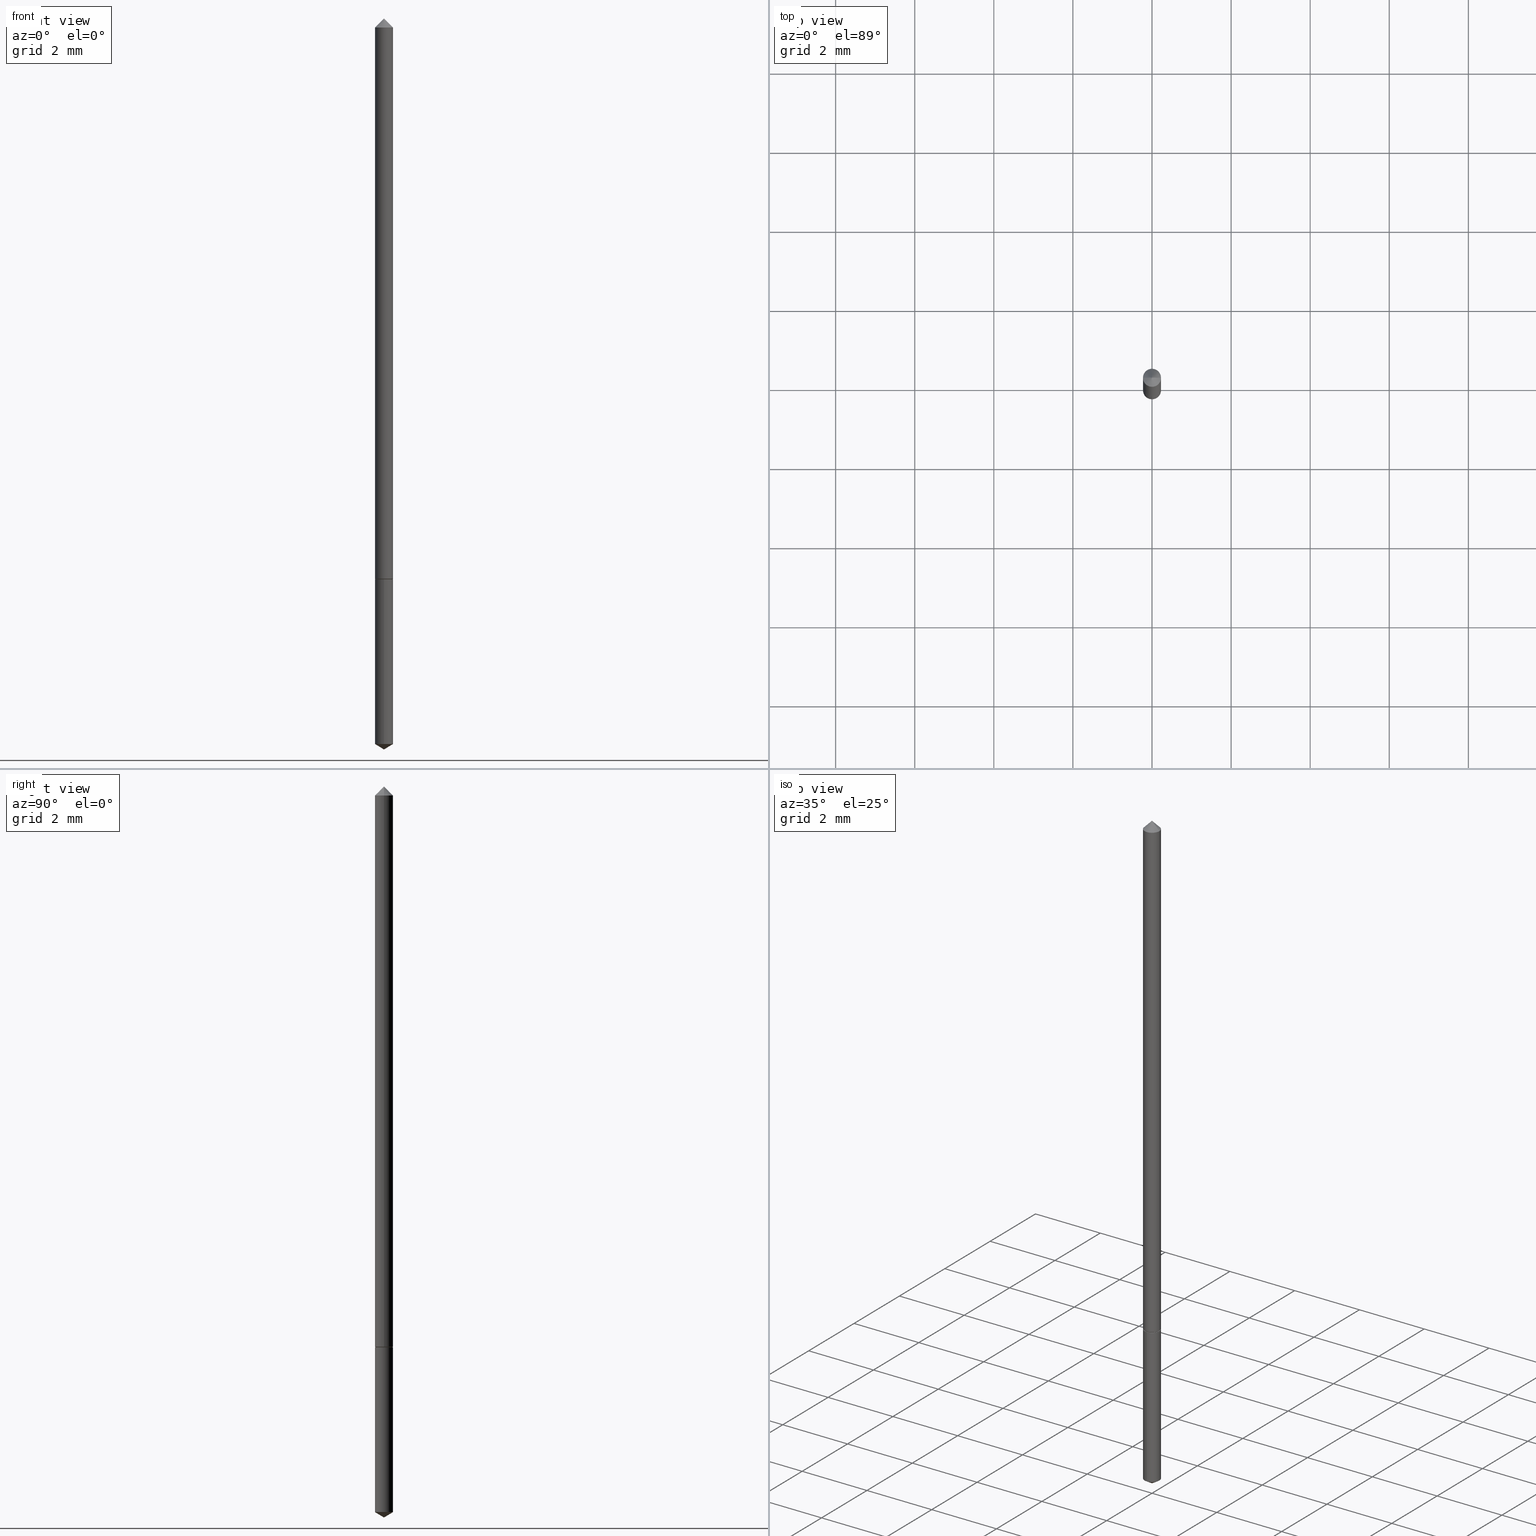
[diagram: canonical four-view strip — front | top / right | iso, engineering-drawing reading convention]
A machine part, canonical four-view strip (front | top / right | iso — engineering-drawing reading convention). The complete STEP part file that produces these views, byte-faithful:
ISO-10303-21;
HEADER;
FILE_DESCRIPTION (( 'STEP AP203' ),
    '1' );
FILE_NAME ('51077.STEP',
    '2024-04-22T18:24:59',
    ( '' ),
    ( '' ),
    'SwSTEP 2.0',
    'SolidWorks 2023',
    '' );
FILE_SCHEMA (( 'CONFIG_CONTROL_DESIGN' ));
ENDSEC;

DATA;
#1 = CALENDAR_DATE ( 2024, 22, 4 ) ;
#2 = DIRECTION ( 'NONE',  ( 6.982962677686265922E-15, 1.000000000000000000, -3.491326065639529727E-15 ) ) ;
#3 = LINE ( 'NONE', #194, #46 ) ;
#4 = EDGE_LOOP ( 'NONE', ( #338, #176, #84, #188 ) ) ;
#5 = AXIS2_PLACEMENT_3D ( 'NONE', #81, #225, #340 ) ;
#6 = DIRECTION ( 'NONE',  ( -6.982962677686265133E-15, -1.000000000000000000, 0.000000000000000000 ) ) ;
#7 = VERTEX_POINT ( 'NONE', #308 ) ;
#8 = LINE ( 'NONE', #278, #47 ) ;
#9 = ADVANCED_FACE ( 'NONE', ( #30 ), #231, .T. ) ;
#10 = DIRECTION ( 'NONE',  ( -2.445468806185136877E-29, 3.491481338843145188E-15, 1.000000000000000000 ) ) ;
#11 = AXIS2_PLACEMENT_3D ( 'NONE', #362, #73, #28 ) ;
#12 = DIRECTION ( 'NONE',  ( -2.445468806185136597E-29, 3.491481338843145583E-15, 1.000000000000000000 ) ) ;
#13 = CARTESIAN_POINT ( 'NONE',  ( -0.009000000000000002789, -1.003135137965526004E-15, -0.03125000000000020123 ) ) ;
#14 = DIRECTION ( 'NONE',  ( -6.982962677686268288E-15, -1.000000000000000000, 3.468864327941607625E-15 ) ) ;
#15 = CARTESIAN_POINT ( 'NONE',  ( 5.441168093761962005E-31, -7.768545978926047101E-17, -0.02225000000000013425 ) ) ;
#16 = EDGE_CURVE ( 'NONE', #287, #248, #280, .T. ) ;
#17 = EDGE_LOOP ( 'NONE', ( #359, #281, #80, #115 ) ) ;
#18 = FACE_OUTER_BOUND ( 'NONE', #306, .T. ) ;
#19 = DIRECTION ( 'NONE',  ( -6.982962677686265133E-15, -1.000000000000000000, 0.000000000000000000 ) ) ;
#20 = CYLINDRICAL_SURFACE ( 'NONE', #276, 0.009000000000000037484 ) ;
#21 = APPROVAL_DATE_TIME ( #159, #251 ) ;
#22 = PERSON_AND_ORGANIZATION_ROLE ( 'creator' ) ;
#23 = ORIENTED_EDGE ( 'NONE', *, *, #208, .F. ) ;
#24 = DATE_TIME_ROLE ( 'classification_date' ) ;
#25 = ADVANCED_FACE ( 'NONE', ( #227 ), #201, .T. ) ;
#26 = DATE_AND_TIME ( #78, #310 ) ;
#27 = CONICAL_SURFACE ( 'NONE', #198, 0.009000000000000002789, 0.7853981633974447263 ) ;
#28 = DIRECTION ( 'NONE',  ( 1.000000000000000000, 0.000000000000000000, 0.000000000000000000 ) ) ;
#29 = CC_DESIGN_SECURITY_CLASSIFICATION ( #125, ( #152 ) ) ;
#30 = FACE_OUTER_BOUND ( 'NONE', #66, .T. ) ;
#31 = ADVANCED_FACE ( 'NONE', ( #107 ), #63, .T. ) ;
#32 = ORIENTED_EDGE ( 'NONE', *, *, #349, .T. ) ;
#33 = DATE_AND_TIME ( #339, #163 ) ;
#34 = CARTESIAN_POINT ( 'NONE',  ( 0.000000000000000000, 0.000000000000000000, 0.000000000000000000 ) ) ;
#35 = VERTEX_POINT ( 'NONE', #258 ) ;
#36 = PLANE ( 'NONE',  #52 ) ;
#37 = EDGE_CURVE ( 'NONE', #197, #195, #60, .T. ) ;
#38 = ORIENTED_EDGE ( 'NONE', *, *, #345, .F. ) ;
#39 = DIRECTION ( 'NONE',  ( 2.445468806185136597E-29, -3.491481338843145583E-15, -1.000000000000000000 ) ) ;
#40 = VECTOR ( 'NONE', #10, 39.37007874015748143 ) ;
#41 = DIRECTION ( 'NONE',  ( -6.982962677686265133E-15, -1.000000000000000000, 0.000000000000000000 ) ) ;
#42 = DIRECTION ( 'NONE',  ( -6.982962677686265133E-15, -1.000000000000000000, 0.000000000000000000 ) ) ;
#43 = LINE ( 'NONE', #151, #40 ) ;
#44 = ORIENTED_EDGE ( 'NONE', *, *, #70, .T. ) ;
#45 = DIRECTION ( 'NONE',  ( 1.000000000000000000, -6.982962677686267499E-15, 4.876176775795935793E-29 ) ) ;
#46 = VECTOR ( 'NONE', #300, 39.37007874015748143 ) ;
#47 = VECTOR ( 'NONE', #134, 39.37007874015748143 ) ;
#48 = LINE ( 'NONE', #355, #260 ) ;
#49 = ADVANCED_FACE ( 'NONE', ( #284 ), #36, .F. ) ;
#50 = VERTEX_POINT ( 'NONE', #337 ) ;
#51 =( NAMED_UNIT ( * ) SI_UNIT ( $, .STERADIAN. ) SOLID_ANGLE_UNIT ( ) );
#52 = AXIS2_PLACEMENT_3D ( 'NONE', #254, #79, #330 ) ;
#53 = ORIENTED_EDGE ( 'NONE', *, *, #189, .F. ) ;
#54 = CALENDAR_DATE ( 2024, 22, 4 ) ;
#55 = EDGE_CURVE ( 'NONE', #358, #35, #8, .T. ) ;
#56 = SECURITY_CLASSIFICATION_LEVEL ( 'unclassified' ) ;
#57 = CC_DESIGN_DATE_AND_TIME_ASSIGNMENT ( #273, #24, ( #125 ) ) ;
#58 = AXIS2_PLACEMENT_3D ( 'NONE', #137, #234, #141 ) ;
#59 = DIRECTION ( 'NONE',  ( 0.7071067811865450192, -7.319954787623246579E-15, -0.7071067811865500152 ) ) ;
#60 = LINE ( 'NONE', #83, #312 ) ;
#61 = ORIENTED_EDGE ( 'NONE', *, *, #226, .T. ) ;
#62 = CARTESIAN_POINT ( 'NONE',  ( 1.820894923513988094E-29, -2.599704482255101683E-15, -0.7445922544287519873 ) ) ;
#63 = CONICAL_SURFACE ( 'NONE', #58, 0.009000000000000072178, 0.7853981633974931320 ) ;
#64 = ADVANCED_FACE ( 'NONE', ( #164 ), #342, .T. ) ;
#65 = CIRCLE ( 'NONE', #113, 0.008500000000000059591 ) ;
#66 = EDGE_LOOP ( 'NONE', ( #53, #154, #32, #38 ) ) ;
#67 = DIRECTION ( 'NONE',  ( -6.982962677686265133E-15, -1.000000000000000000, 0.000000000000000000 ) ) ;
#68 = ORIENTED_EDGE ( 'NONE', *, *, #329, .F. ) ;
#69 = CARTESIAN_POINT ( 'NONE',  ( 7.642090019328600035E-31, -1.091087918388489897E-16, -0.03125000000000020123 ) ) ;
#70 = EDGE_CURVE ( 'NONE', #197, #172, #256, .T. ) ;
#71 = ORIENTED_EDGE ( 'NONE', *, *, #299, .T. ) ;
#72 = PERSON_AND_ORGANIZATION ( #127, #343 ) ;
#73 = DIRECTION ( 'NONE',  ( 0.000000000000000000, 0.000000000000000000, 1.000000000000000000 ) ) ;
#74 = VECTOR ( 'NONE', #352, 39.37007874015748143 ) ;
#75 = ORIENTED_EDGE ( 'NONE', *, *, #361, .F. ) ;
#76 = CALENDAR_DATE ( 2024, 22, 4 ) ;
#77 = CARTESIAN_POINT ( 'NONE',  ( -0.009000000000000002789, -4.626212773967256861E-17, -0.03125000000000020123 ) ) ;
#78 = CALENDAR_DATE ( 2024, 22, 4 ) ;
#79 = DIRECTION ( 'NONE',  ( -2.438088387897960049E-29, 3.491481338843145188E-15, 1.000000000000000000 ) ) ;
#80 = ORIENTED_EDGE ( 'NONE', *, *, #257, .F. ) ;
#81 = CARTESIAN_POINT ( 'NONE',  ( -9.444844824080368239E-28, 1.348351974264681605E-13, 38.62007874015748143 ) ) ;
#82 = EDGE_CURVE ( 'NONE', #287, #50, #3, .T. ) ;
#83 = CARTESIAN_POINT ( 'NONE',  ( 0.009000000000000002789, -1.708532738187927954E-16, -0.03125000000000020123 ) ) ;
#84 = ORIENTED_EDGE ( 'NONE', *, *, #329, .T. ) ;
#85 = ORIENTED_EDGE ( 'NONE', *, *, #173, .F. ) ;
#86 = ADVANCED_FACE ( 'NONE', ( #109 ), #162, .F. ) ;
#87 = CYLINDRICAL_SURFACE ( 'NONE', #187, 0.008999999999999999320 ) ;
#88 = MANIFOLD_SOLID_BREP ( 'Body-Move/Copy2[2]', #124 ) ;
#89 = LINE ( 'NONE', #346, #74 ) ;
#90 = VERTEX_POINT ( 'NONE', #228 ) ;
#91 = DIRECTION ( 'NONE',  ( 1.000000000000000000, -6.982962677686268288E-15, 0.000000000000000000 ) ) ;
#92 = CARTESIAN_POINT ( 'NONE',  ( 1.418371907587379260E-29, -2.025059176529024998E-15, -0.5800000000000000711 ) ) ;
#93 = CC_DESIGN_PERSON_AND_ORGANIZATION_ASSIGNMENT ( #104, #22, ( #143 ) ) ;
#94 = EDGE_LOOP ( 'NONE', ( #61, #262, #165, #85 ) ) ;
#95 = LINE ( 'NONE', #214, #202 ) ;
#96 = EDGE_LOOP ( 'NONE', ( #205, #110, #75, #68 ) ) ;
#97 = CARTESIAN_POINT ( 'NONE',  ( 1.419594641990472061E-29, -2.026804917198446107E-15, -0.5805000000000000160 ) ) ;
#98 = COORDINATED_UNIVERSAL_TIME_OFFSET ( 5, 0, .BEHIND. ) ;
#99 = CYLINDRICAL_SURFACE ( 'NONE', #363, 0.008999999999999999320 ) ;
#100 = PERSON_AND_ORGANIZATION_ROLE ( 'creator' ) ;
#101 = ORIENTED_EDGE ( 'NONE', *, *, #82, .F. ) ;
#102 = VECTOR ( 'NONE', #190, 39.37007874015748143 ) ;
#103 = DIRECTION ( 'NONE',  ( -2.445577232883705926E-29, 3.491326065639529727E-15, 1.000000000000000000 ) ) ;
#104 = PERSON_AND_ORGANIZATION ( #127, #343 ) ;
#105 = EDGE_CURVE ( 'NONE', #248, #90, #335, .T. ) ;
#106 = ORIENTED_EDGE ( 'NONE', *, *, #257, .T. ) ;
#107 = FACE_OUTER_BOUND ( 'NONE', #96, .T. ) ;
#108 = APPROVAL_STATUS ( 'not_yet_approved' ) ;
#109 = FACE_OUTER_BOUND ( 'NONE', #135, .T. ) ;
#110 = ORIENTED_EDGE ( 'NONE', *, *, #55, .T. ) ;
#111 = CONICAL_SURFACE ( 'NONE', #313, 65.52281426576817580, 1.029744258676652757 ) ;
#112 = CC_DESIGN_PERSON_AND_ORGANIZATION_ASSIGNMENT ( #184, #219, ( #152 ) ) ;
#113 = AXIS2_PLACEMENT_3D ( 'NONE', #212, #263, #150 ) ;
#114 = DIRECTION ( 'NONE',  ( -2.445468806185136597E-29, 3.491481338843145583E-15, 1.000000000000000000 ) ) ;
#115 = ORIENTED_EDGE ( 'NONE', *, *, #349, .F. ) ;
#116 = DIRECTION ( 'NONE',  ( -2.445577232883705926E-29, 3.491326065639529727E-15, 1.000000000000000000 ) ) ;
#117 = CARTESIAN_POINT ( 'NONE',  ( 1.419594641990472061E-29, -2.026804917198446107E-15, -0.5805000000000000160 ) ) ;
#118 = EDGE_CURVE ( 'NONE', #248, #50, #209, .T. ) ;
#119 = ORIENTED_EDGE ( 'NONE', *, *, #118, .F. ) ;
#120 = CARTESIAN_POINT ( 'NONE',  ( -9.444844824080368239E-28, 1.348351974264681605E-13, 38.62007874015748143 ) ) ;
#121 = PRODUCT_DEFINITION_SHAPE ( 'NONE', 'NONE',  #143 ) ;
#122 = CARTESIAN_POINT ( 'NONE',  ( 0.000000000000000000, 0.000000000000000000, 0.000000000000000000 ) ) ;
#123 = EDGE_LOOP ( 'NONE', ( #232, #279 ) ) ;
#124 = CLOSED_SHELL ( 'NONE', ( #132, #315, #31, #49, #166, #9, #25 ) ) ;
#125 = SECURITY_CLASSIFICATION ( '', '', #56 ) ;
#126 = APPROVAL_DATE_TIME ( #328, #180 ) ;
#127 = PERSON ( 'UNSPECIFIED', 'UNSPECIFIED', 'UNSPECIFIED', ('UNSPECIFIED'), ('UNSPECIFIED'), ('UNSPECIFIED') ) ;
#128 = ORIENTED_EDGE ( 'NONE', *, *, #37, .T. ) ;
#129 = PERSON_AND_ORGANIZATION ( #127, #343 ) ;
#130 = DATE_TIME_ROLE ( 'creation_date' ) ;
#131 = CC_DESIGN_APPROVAL ( #180, ( #152 ) ) ;
#132 = ADVANCED_FACE ( 'NONE', ( #18 ), #27, .T. ) ;
#133 =( LENGTH_UNIT ( ) NAMED_UNIT ( * ) SI_UNIT ( $, .METRE. ) );
#134 = DIRECTION ( 'NONE',  ( -0.7071067811865792141, 7.493145998870469334E-15, 0.7071067811865158204 ) ) ;
#135 = EDGE_LOOP ( 'NONE', ( #71, #215 ) ) ;
#136 = CC_DESIGN_PERSON_AND_ORGANIZATION_ASSIGNMENT ( #324, #249, ( #125 ) ) ;
#137 = CARTESIAN_POINT ( 'NONE',  ( 1.418371907587379260E-29, -2.025059176529024998E-15, -0.5800000000000000711 ) ) ;
#138 = CIRCLE ( 'NONE', #246, 0.008999999999999999320 ) ;
#139 = AXIS2_PLACEMENT_3D ( 'NONE', #97, #240, #67 ) ;
#140 = DIRECTION ( 'NONE',  ( -2.445577232883705926E-29, 3.491326065639529727E-15, 1.000000000000000000 ) ) ;
#141 = DIRECTION ( 'NONE',  ( 1.000000000000000000, -6.982962677686277755E-15, 0.000000000000000000 ) ) ;
#142 = APPROVAL_ROLE ( '' ) ;
#143 = PRODUCT_DEFINITION ( 'UNKNOWN', '', #152, #200 ) ;
#144 = AXIS2_PLACEMENT_3D ( 'NONE', #92, #347, #147 ) ;
#145 = DIRECTION ( 'NONE',  ( -2.445468806185136597E-29, 3.491481338843145583E-15, 1.000000000000000000 ) ) ;
#146 = CC_DESIGN_APPROVAL ( #251, ( #143 ) ) ;
#147 = DIRECTION ( 'NONE',  ( 1.000000000000000000, -6.982962677686277755E-15, 0.000000000000000000 ) ) ;
#148 = CARTESIAN_POINT ( 'NONE',  ( 1.834182924662779585E-29, -2.618494549229647394E-15, -0.7500000000000001110 ) ) ;
#149 = ORIENTED_EDGE ( 'NONE', *, *, #173, .T. ) ;
#150 = DIRECTION ( 'NONE',  ( 1.000000000000000000, -6.982962677686255667E-15, 0.000000000000000000 ) ) ;
#151 = CARTESIAN_POINT ( 'NONE',  ( -0.009000000000000037484, 6.394884621840928307E-17, -4.427041581229433862E-31 ) ) ;
#152 = PRODUCT_DEFINITION_FORMATION_WITH_SPECIFIED_SOURCE ( 'ANY', '', #245, .NOT_KNOWN. ) ;
#153 = CARTESIAN_POINT ( 'NONE',  ( 1.419594641990472061E-29, -2.026804917198446107E-15, -0.5805000000000000160 ) ) ;
#154 = ORIENTED_EDGE ( 'NONE', *, *, #161, .T. ) ;
#155 = PERSON_AND_ORGANIZATION ( #127, #343 ) ;
#156 = COORDINATED_UNIVERSAL_TIME_OFFSET ( 5, 0, .BEHIND. ) ;
#157 = CARTESIAN_POINT ( 'NONE',  ( 1.820894923513988094E-29, -2.599704482255101683E-15, -0.7445922544287519873 ) ) ;
#158 = ORIENTED_EDGE ( 'NONE', *, *, #345, .T. ) ;
#159 = DATE_AND_TIME ( #1, #264 ) ;
#160 = APPLICATION_PROTOCOL_DEFINITION ( 'international standard', 'config_control_design', 1994, #332 ) ;
#161 = EDGE_CURVE ( 'NONE', #35, #168, #286, .T. ) ;
#162 = PLANE ( 'NONE',  #259 ) ;
#163 = LOCAL_TIME ( 14, 24, 59.00000000000000000, #233 ) ;
#164 = FACE_OUTER_BOUND ( 'NONE', #282, .T. ) ;
#165 = ORIENTED_EDGE ( 'NONE', *, *, #299, .F. ) ;
#166 = ADVANCED_FACE ( 'NONE', ( #314 ), #192, .T. ) ;
#167 = DIRECTION ( 'NONE',  ( -2.445468806185136597E-29, 3.491481338843145583E-15, 1.000000000000000000 ) ) ;
#168 = VERTEX_POINT ( 'NONE', #204 ) ;
#169 = ORIENTED_EDGE ( 'NONE', *, *, #70, .F. ) ;
#170 = AXIS2_PLACEMENT_3D ( 'NONE', #157, #103, #41 ) ;
#171 = DIRECTION ( 'NONE',  ( -1.000000000000000000, 6.982962677686266711E-15, 0.000000000000000000 ) ) ;
#172 = VERTEX_POINT ( 'NONE', #13 ) ;
#173 = EDGE_CURVE ( 'NONE', #50, #325, #89, .T. ) ;
#174 = DIRECTION ( 'NONE',  ( 1.000000000000000000, -6.982962677686277755E-15, 0.000000000000000000 ) ) ;
#175 = CARTESIAN_POINT ( 'NONE',  ( -6.284666409916219695E-17, -0.009000000000002025477, -0.5805000000000000160 ) ) ;
#176 = ORIENTED_EDGE ( 'NONE', *, *, #220, .T. ) ;
#177 = CARTESIAN_POINT ( 'NONE',  ( 1.419594641990472061E-29, -2.026804917198446107E-15, -0.5805000000000000160 ) ) ;
#178 = CARTESIAN_POINT ( 'NONE',  ( 7.642090019328600035E-31, -1.091087918388489897E-16, -0.03125000000000020123 ) ) ;
#179 = AXIS2_PLACEMENT_3D ( 'NONE', #62, #140, #6 ) ;
#180 = APPROVAL ( #322, 'UNSPECIFIED' ) ;
#181 = APPLICATION_CONTEXT ( 'configuration controlled 3d designs of mechanical parts and assemblies' ) ;
#182 = ORIENTED_EDGE ( 'NONE', *, *, #226, .F. ) ;
#183 = EDGE_LOOP ( 'NONE', ( #101, #344, #182 ) ) ;
#184 = PERSON_AND_ORGANIZATION ( #127, #343 ) ;
#185 = APPROVAL_STATUS ( 'not_yet_approved' ) ;
#186 = CIRCLE ( 'NONE', #239, 0.008500000000000059591 ) ;
#187 = AXIS2_PLACEMENT_3D ( 'NONE', #354, #318, #42 ) ;
#188 = ORIENTED_EDGE ( 'NONE', *, *, #161, .F. ) ;
#189 = EDGE_CURVE ( 'NONE', #35, #172, #43, .T. ) ;
#190 = DIRECTION ( 'NONE',  ( -0.7071067811865450192, 2.468850131082230634E-15, -0.7071067811865500152 ) ) ;
#191 = DIRECTION ( 'NONE',  ( 2.445468806185136597E-29, -3.491481338843145583E-15, -1.000000000000000000 ) ) ;
#192 = CONICAL_SURFACE ( 'NONE', #296, 0.009000000000000072178, 0.7853981633974931320 ) ;
#193 = CARTESIAN_POINT ( 'NONE',  ( 6.394884621842319907E-17, 0.008999999999997973163, -0.5805000000000000160 ) ) ;
#194 = CARTESIAN_POINT ( 'NONE',  ( 1.834057041265740515E-29, -2.618674821419045132E-15, -0.7500000000000001110 ) ) ;
#195 = VERTEX_POINT ( 'NONE', #237 ) ;
#196 = CARTESIAN_POINT ( 'NONE',  ( 1.834184028511578116E-29, -2.618494549229647394E-15, -0.7500000000000001110 ) ) ;
#197 = VERTEX_POINT ( 'NONE', #15 ) ;
#198 = AXIS2_PLACEMENT_3D ( 'NONE', #206, #39, #348 ) ;
#199 = DIMENSIONAL_EXPONENTS ( 1.000000000000000000, 0.000000000000000000, 0.000000000000000000, 0.000000000000000000, 0.000000000000000000, 0.000000000000000000, 0.000000000000000000 ) ;
#200 = DESIGN_CONTEXT ( 'detailed design', #181, 'design' ) ;
#201 = CONICAL_SURFACE ( 'NONE', #271, 0.009000000000000002789, 0.7853981633974447263 ) ;
#202 = VECTOR ( 'NONE', #351, 39.37007874015748143 ) ;
#203 = CC_DESIGN_DATE_AND_TIME_ASSIGNMENT ( #26, #130, ( #143 ) ) ;
#204 = CARTESIAN_POINT ( 'NONE',  ( 0.009000000000000072178, -2.087905840628201888E-15, -0.5800000000000000711 ) ) ;
#205 = ORIENTED_EDGE ( 'NONE', *, *, #272, .T. ) ;
#206 = CARTESIAN_POINT ( 'NONE',  ( 7.642090019328600035E-31, -1.091087918388489897E-16, -0.03125000000000020123 ) ) ;
#207 = FACE_OUTER_BOUND ( 'NONE', #17, .T. ) ;
#208 = EDGE_CURVE ( 'NONE', #90, #325, #138, .T. ) ;
#209 = CIRCLE ( 'NONE', #179, 0.009000000000000001055 ) ;
#210 = CARTESIAN_POINT ( 'NONE',  ( -0.008500000000000059591, -1.963759557484726337E-15, -0.5805000000000000160 ) ) ;
#211 = APPROVAL_PERSON_ORGANIZATION ( #326, #180, #224 ) ;
#212 = CARTESIAN_POINT ( 'NONE',  ( 1.419594641990472061E-29, -2.026804917198446107E-15, -0.5805000000000000160 ) ) ;
#213 = DIRECTION ( 'NONE',  ( -2.445577232883705926E-29, 3.491326065639529727E-15, 1.000000000000000000 ) ) ;
#214 = CARTESIAN_POINT ( 'NONE',  ( 0.009000000000000072178, -2.087905840628201888E-15, -0.5800000000000000711 ) ) ;
#215 = ORIENTED_EDGE ( 'NONE', *, *, #208, .T. ) ;
#216 = DIRECTION ( 'NONE',  ( -2.445468806185136877E-29, 3.491481338843145188E-15, 1.000000000000000000 ) ) ;
#217 = CC_DESIGN_APPROVAL ( #356, ( #125 ) ) ;
#218 = ORIENTED_EDGE ( 'NONE', *, *, #37, .F. ) ;
#219 = PERSON_AND_ORGANIZATION_ROLE ( 'design_supplier' ) ;
#220 = EDGE_CURVE ( 'NONE', #358, #7, #186, .T. ) ;
#221 =( NAMED_UNIT ( * ) PLANE_ANGLE_UNIT ( ) SI_UNIT ( $, .RADIAN. ) );
#222 = VECTOR ( 'NONE', #303, 39.37007874015748143 ) ;
#223 =( GEOMETRIC_REPRESENTATION_CONTEXT ( 3 ) GLOBAL_UNCERTAINTY_ASSIGNED_CONTEXT ( ( #304 ) ) GLOBAL_UNIT_ASSIGNED_CONTEXT ( ( #360, #221, #51 ) ) REPRESENTATION_CONTEXT ( 'NONE', 'WORKASPACE' ) );
#224 = APPROVAL_ROLE ( '' ) ;
#225 = DIRECTION ( 'NONE',  ( -2.445577232883705926E-29, 3.491326065639529727E-15, 1.000000000000000000 ) ) ;
#226 = EDGE_CURVE ( 'NONE', #50, #248, #327, .T. ) ;
#227 = FACE_OUTER_BOUND ( 'NONE', #321, .T. ) ;
#228 = CARTESIAN_POINT ( 'NONE',  ( 6.394884621842725431E-17, 0.008999999999997973163, -0.5805000000000000160 ) ) ;
#229 = CLOSED_SHELL ( 'NONE', ( #238, #243, #64, #290, #86 ) ) ;
#230 = CIRCLE ( 'NONE', #319, 0.009000000000000002789 ) ;
#231 = CYLINDRICAL_SURFACE ( 'NONE', #291, 0.009000000000000037484 ) ;
#232 = ORIENTED_EDGE ( 'NONE', *, *, #272, .F. ) ;
#233 = COORDINATED_UNIVERSAL_TIME_OFFSET ( 5, 0, .BEHIND. ) ;
#234 = DIRECTION ( 'NONE',  ( -2.445468806185136597E-29, 3.491481338843145583E-15, 1.000000000000000000 ) ) ;
#235 = SHAPE_DEFINITION_REPRESENTATION ( #121, #350 ) ;
#236 = DIRECTION ( 'NONE',  ( -2.445468806185136597E-29, 3.491481338843145583E-15, 1.000000000000000000 ) ) ;
#237 = CARTESIAN_POINT ( 'NONE',  ( 0.009000000000000002789, -1.719554559380254231E-16, -0.03125000000000020123 ) ) ;
#238 = ADVANCED_FACE ( 'NONE', ( #268 ), #99, .T. ) ;
#239 = AXIS2_PLACEMENT_3D ( 'NONE', #177, #236, #289 ) ;
#240 = DIRECTION ( 'NONE',  ( -2.445577232883705926E-29, 3.491326065639529727E-15, 1.000000000000000000 ) ) ;
#241 = DIRECTION ( 'NONE',  ( 1.000000000000000000, -6.982962677686277755E-15, 0.000000000000000000 ) ) ;
#242 = FACE_OUTER_BOUND ( 'NONE', #294, .T. ) ;
#243 = ADVANCED_FACE ( 'NONE', ( #266 ), #111, .T. ) ;
#244 = DIRECTION ( 'NONE',  ( 1.000000000000000000, -6.982962677686268288E-15, 0.000000000000000000 ) ) ;
#245 = PRODUCT ( '51077', '51077', '', ( #247 ) ) ;
#246 = AXIS2_PLACEMENT_3D ( 'NONE', #117, #213, #317 ) ;
#247 = MECHANICAL_CONTEXT ( 'NONE', #332, 'mechanical' ) ;
#248 = VERTEX_POINT ( 'NONE', #288 ) ;
#249 = PERSON_AND_ORGANIZATION_ROLE ( 'classification_officer' ) ;
#250 = AXIS2_PLACEMENT_3D ( 'NONE', #320, #311, #174 ) ;
#251 = APPROVAL ( #185, 'UNSPECIFIED' ) ;
#252 = DIRECTION ( 'NONE',  ( 2.445577232883705646E-29, -3.491326065639529727E-15, -1.000000000000000000 ) ) ;
#253 = CARTESIAN_POINT ( 'NONE',  ( 7.642090019328600035E-31, -1.091087918388489897E-16, -0.03125000000000020123 ) ) ;
#254 = CARTESIAN_POINT ( 'NONE',  ( 1.419594641990472061E-29, -2.026804917198446107E-15, -0.5805000000000000160 ) ) ;
#255 = LOCAL_TIME ( 14, 24, 59.00000000000000000, #270 ) ;
#256 = LINE ( 'NONE', #77, #102 ) ;
#257 = EDGE_CURVE ( 'NONE', #195, #172, #309, .T. ) ;
#258 = CARTESIAN_POINT ( 'NONE',  ( -0.009000000000000072178, -1.961110330310615530E-15, -0.5800000000000000711 ) ) ;
#259 = AXIS2_PLACEMENT_3D ( 'NONE', #307, #252, #2 ) ;
#260 = VECTOR ( 'NONE', #216, 39.37007874015748143 ) ;
#261 = CARTESIAN_POINT ( 'NONE',  ( 1.418371907587379260E-29, -2.025059176529024998E-15, -0.5800000000000000711 ) ) ;
#262 = ORIENTED_EDGE ( 'NONE', *, *, #105, .T. ) ;
#263 = DIRECTION ( 'NONE',  ( -2.445468806185136597E-29, 3.491481338843145583E-15, 1.000000000000000000 ) ) ;
#264 = LOCAL_TIME ( 14, 24, 59.00000000000000000, #156 ) ;
#265 = CC_DESIGN_PERSON_AND_ORGANIZATION_ASSIGNMENT ( #72, #100, ( #152 ) ) ;
#266 = FACE_OUTER_BOUND ( 'NONE', #183, .T. ) ;
#267 = PERSON_AND_ORGANIZATION_ROLE ( 'design_owner' ) ;
#268 = FACE_OUTER_BOUND ( 'NONE', #94, .T. ) ;
#269 = ORIENTED_EDGE ( 'NONE', *, *, #82, .T. ) ;
#270 = COORDINATED_UNIVERSAL_TIME_OFFSET ( 5, 0, .BEHIND. ) ;
#271 = AXIS2_PLACEMENT_3D ( 'NONE', #253, #191, #171 ) ;
#272 = EDGE_CURVE ( 'NONE', #7, #358, #65, .T. ) ;
#273 = DATE_AND_TIME ( #54, #364 ) ;
#274 = APPLICATION_PROTOCOL_DEFINITION ( 'international standard', 'config_control_design', 1994, #181 ) ;
#275 = COORDINATED_UNIVERSAL_TIME_OFFSET ( 5, 0, .BEHIND. ) ;
#276 = AXIS2_PLACEMENT_3D ( 'NONE', #122, #145, #45 ) ;
#277 = CC_DESIGN_PERSON_AND_ORGANIZATION_ASSIGNMENT ( #155, #267, ( #245 ) ) ;
#278 = CARTESIAN_POINT ( 'NONE',  ( -0.009000000000000072178, -1.961110330310615530E-15, -0.5800000000000000711 ) ) ;
#279 = ORIENTED_EDGE ( 'NONE', *, *, #220, .F. ) ;
#280 = LINE ( 'NONE', #196, #222 ) ;
#281 = ORIENTED_EDGE ( 'NONE', *, *, #189, .T. ) ;
#282 = EDGE_LOOP ( 'NONE', ( #336, #269, #119 ) ) ;
#283 = APPROVAL_DATE_TIME ( #33, #356 ) ;
#284 = FACE_OUTER_BOUND ( 'NONE', #123, .T. ) ;
#285 = PRODUCT_RELATED_PRODUCT_CATEGORY ( 'detail', '', ( #245 ) ) ;
#286 = CIRCLE ( 'NONE', #144, 0.009000000000000072178 ) ;
#287 = VERTEX_POINT ( 'NONE', #148 ) ;
#288 = CARTESIAN_POINT ( 'NONE',  ( 6.394884621842722965E-17, 0.008999999999997400704, -0.7445922544287519873 ) ) ;
#289 = DIRECTION ( 'NONE',  ( 1.000000000000000000, -6.982962677686255667E-15, 0.000000000000000000 ) ) ;
#290 = ADVANCED_FACE ( 'NONE', ( #242 ), #87, .T. ) ;
#291 = AXIS2_PLACEMENT_3D ( 'NONE', #34, #167, #333 ) ;
#292 = AXIS2_PLACEMENT_3D ( 'NONE', #69, #12, #244 ) ;
#293 = DIRECTION ( 'NONE',  ( -2.445468806185136597E-29, 3.491481338843145583E-15, 1.000000000000000000 ) ) ;
#294 = EDGE_LOOP ( 'NONE', ( #353, #323, #149, #23 ) ) ;
#295 = LENGTH_MEASURE_WITH_UNIT ( LENGTH_MEASURE( 0.02539999999999999897 ), #133 );
#296 = AXIS2_PLACEMENT_3D ( 'NONE', #261, #114, #241 ) ;
#297 = CIRCLE ( 'NONE', #139, 0.008999999999999999320 ) ;
#298 = PERSON_AND_ORGANIZATION ( #127, #343 ) ;
#299 = EDGE_CURVE ( 'NONE', #325, #90, #297, .T. ) ;
#300 = DIRECTION ( 'NONE',  ( -5.985567269335937335E-15, -0.8571673007021096691, 0.5150380749100585964 ) ) ;
#301 = VECTOR ( 'NONE', #305, 39.37007874015748143 ) ;
#302 = CIRCLE ( 'NONE', #250, 0.009000000000000072178 ) ;
#303 = DIRECTION ( 'NONE',  ( 6.090539988449774491E-15, 0.8571673007021132218, 0.5150380749100526012 ) ) ;
#304 = UNCERTAINTY_MEASURE_WITH_UNIT (LENGTH_MEASURE( 1.000000000000000082E-05 ), #360, 'distance_accuracy_value', 'NONE');
#305 = DIRECTION ( 'NONE',  ( -2.445577232883705926E-29, 3.491326065639529727E-15, 1.000000000000000000 ) ) ;
#306 = EDGE_LOOP ( 'NONE', ( #169, #128, #106 ) ) ;
#307 = CARTESIAN_POINT ( 'NONE',  ( 1.419594641990472061E-29, -2.026804917198446107E-15, -0.5805000000000000160 ) ) ;
#308 = CARTESIAN_POINT ( 'NONE',  ( 0.008500000000000059591, -2.086160099958779990E-15, -0.5805000000000000160 ) ) ;
#309 = CIRCLE ( 'NONE', #292, 0.009000000000000002789 ) ;
#310 = LOCAL_TIME ( 14, 24, 59.00000000000000000, #98 ) ;
#311 = DIRECTION ( 'NONE',  ( -2.445468806185136597E-29, 3.491481338843145583E-15, 1.000000000000000000 ) ) ;
#312 = VECTOR ( 'NONE', #59, 39.37007874015748143 ) ;
#313 = AXIS2_PLACEMENT_3D ( 'NONE', #120, #316, #14 ) ;
#314 = FACE_OUTER_BOUND ( 'NONE', #4, .T. ) ;
#315 = ADVANCED_FACE ( 'NONE', ( #207 ), #20, .T. ) ;
#316 = DIRECTION ( 'NONE',  ( -2.445577232883705926E-29, 3.491326065639529727E-15, 1.000000000000000000 ) ) ;
#317 = DIRECTION ( 'NONE',  ( -6.982962677686265133E-15, -1.000000000000000000, 0.000000000000000000 ) ) ;
#318 = DIRECTION ( 'NONE',  ( -2.445577232883705926E-29, 3.491326065639529727E-15, 1.000000000000000000 ) ) ;
#319 = AXIS2_PLACEMENT_3D ( 'NONE', #178, #293, #91 ) ;
#320 = CARTESIAN_POINT ( 'NONE',  ( 1.418371907587379260E-29, -2.025059176529024998E-15, -0.5800000000000000711 ) ) ;
#321 = EDGE_LOOP ( 'NONE', ( #218, #44, #158 ) ) ;
#322 = APPROVAL_STATUS ( 'not_yet_approved' ) ;
#323 = ORIENTED_EDGE ( 'NONE', *, *, #118, .T. ) ;
#324 = PERSON_AND_ORGANIZATION ( #127, #343 ) ;
#325 = VERTEX_POINT ( 'NONE', #175 ) ;
#326 = PERSON_AND_ORGANIZATION ( #127, #343 ) ;
#327 = CIRCLE ( 'NONE', #170, 0.009000000000000001055 ) ;
#328 = DATE_AND_TIME ( #76, #255 ) ;
#329 = EDGE_CURVE ( 'NONE', #7, #168, #95, .T. ) ;
#330 = DIRECTION ( 'NONE',  ( 1.000000000000000000, -6.982962677686265922E-15, 4.876176775795935793E-29 ) ) ;
#331 = APPROVAL_ROLE ( '' ) ;
#332 = APPLICATION_CONTEXT ( 'configuration controlled 3d designs of mechanical parts and assemblies' ) ;
#333 = DIRECTION ( 'NONE',  ( 1.000000000000000000, -6.982962677686267499E-15, 4.876176775795935793E-29 ) ) ;
#334 = APPROVAL_PERSON_ORGANIZATION ( #298, #251, #331 ) ;
#335 = LINE ( 'NONE', #193, #301 ) ;
#336 = ORIENTED_EDGE ( 'NONE', *, *, #16, .F. ) ;
#337 = CARTESIAN_POINT ( 'NONE',  ( -6.284666409915819102E-17, -0.009000000000002601405, -0.7445922544287519873 ) ) ;
#338 = ORIENTED_EDGE ( 'NONE', *, *, #55, .F. ) ;
#339 = CALENDAR_DATE ( 2024, 22, 4 ) ;
#340 = DIRECTION ( 'NONE',  ( -6.982962677686268288E-15, -1.000000000000000000, 3.468864327941607625E-15 ) ) ;
#341 = MANIFOLD_SOLID_BREP ( 'Body-Move/Copy2[1]', #229 ) ;
#342 = CONICAL_SURFACE ( 'NONE', #5, 65.52281426576817580, 1.029744258676652757 ) ;
#343 = ORGANIZATION ( 'UNSPECIFIED', 'UNSPECIFIED', '' ) ;
#344 = ORIENTED_EDGE ( 'NONE', *, *, #16, .T. ) ;
#345 = EDGE_CURVE ( 'NONE', #172, #195, #230, .T. ) ;
#346 = CARTESIAN_POINT ( 'NONE',  ( -6.284666409916219695E-17, -0.009000000000002025477, -0.5805000000000000160 ) ) ;
#347 = DIRECTION ( 'NONE',  ( -2.445468806185136597E-29, 3.491481338843145583E-15, 1.000000000000000000 ) ) ;
#348 = DIRECTION ( 'NONE',  ( -1.000000000000000000, 6.982962677686266711E-15, 0.000000000000000000 ) ) ;
#349 = EDGE_CURVE ( 'NONE', #168, #195, #48, .T. ) ;
#350 = ADVANCED_BREP_SHAPE_REPRESENTATION ( '51077', ( #341, #88, #11 ), #223 ) ;
#351 = DIRECTION ( 'NONE',  ( 0.7071067811865792141, -2.468850131082588777E-15, 0.7071067811865158204 ) ) ;
#352 = DIRECTION ( 'NONE',  ( -2.445577232883705926E-29, 3.491326065639529727E-15, 1.000000000000000000 ) ) ;
#353 = ORIENTED_EDGE ( 'NONE', *, *, #105, .F. ) ;
#354 = CARTESIAN_POINT ( 'NONE',  ( 1.419594641990472061E-29, -2.026804917198446107E-15, -0.5805000000000000160 ) ) ;
#355 = CARTESIAN_POINT ( 'NONE',  ( 0.009000000000000037484, -6.284666409917666762E-17, 4.388559098216360676E-31 ) ) ;
#356 = APPROVAL ( #108, 'UNSPECIFIED' ) ;
#357 = APPROVAL_PERSON_ORGANIZATION ( #129, #356, #142 ) ;
#358 = VERTEX_POINT ( 'NONE', #210 ) ;
#359 = ORIENTED_EDGE ( 'NONE', *, *, #361, .T. ) ;
#360 =( CONVERSION_BASED_UNIT ( 'INCH', #295 ) LENGTH_UNIT ( ) NAMED_UNIT ( #199 ) );
#361 = EDGE_CURVE ( 'NONE', #168, #35, #302, .T. ) ;
#362 = CARTESIAN_POINT ( 'NONE',  ( 0.000000000000000000, 0.000000000000000000, 0.000000000000000000 ) ) ;
#363 = AXIS2_PLACEMENT_3D ( 'NONE', #153, #116, #19 ) ;
#364 = LOCAL_TIME ( 14, 24, 59.00000000000000000, #275 ) ;
ENDSEC;
END-ISO-10303-21;
